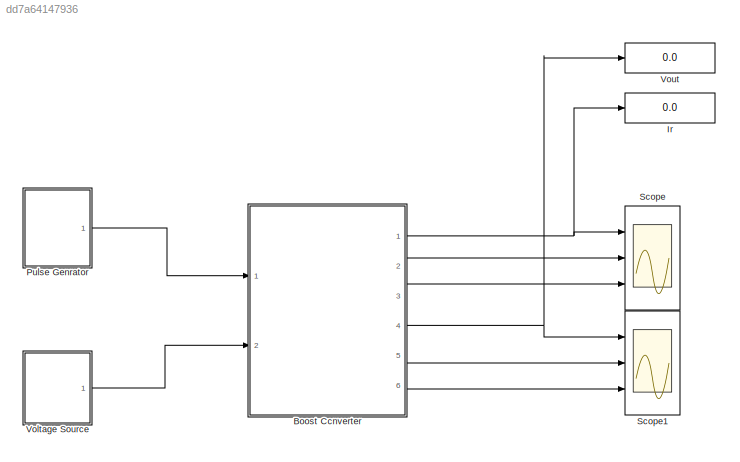
MODEL slx_dd7a64147936
KIND model
CONFIG AbsTol = auto
CONFIG FixedStep = auto
CONFIG MaxStep = auto
CONFIG MinStep = auto
CONFIG RelTol = 1e-3
CONFIG SampleTimeConstraint = Unconstrained
CONFIG Solver = ode45
CONFIG SolverMode = Auto
CONFIG SolverName = ode45
CONFIG StartTime = 0.0
CONFIG StopTime = 0.1
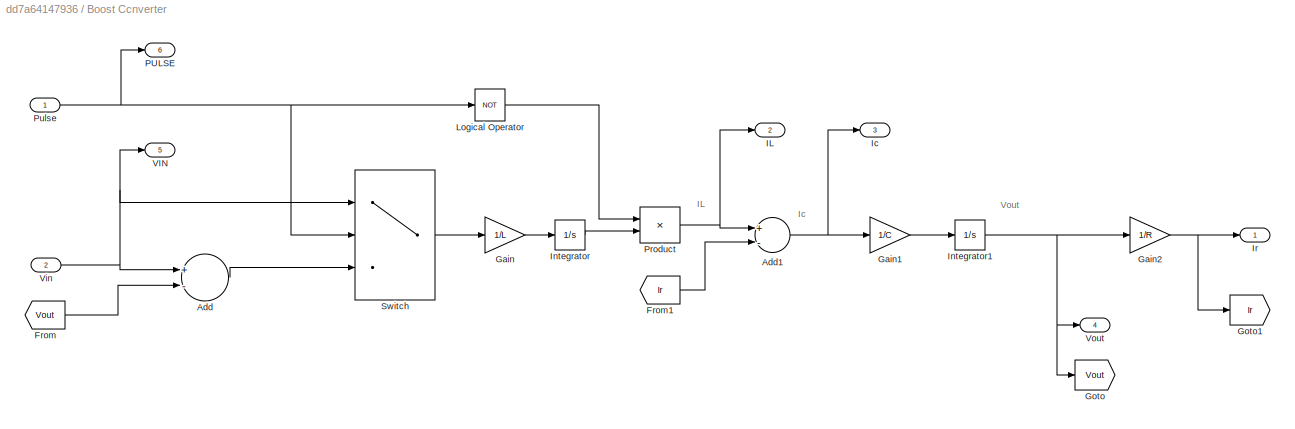
BLOCK [SubSystem] Boost Ccnverter
  Ports = [2, 6]
  RequestExecContextInheritance = off
BLOCK [Sum] Boost Ccnverter/Add
  InputSameDT = off
  Inputs = +-
  OutDataTypeStr = Inherit: Inherit via internal rule
  Ports = [2, 1]
  SaturateOnIntegerOverflow = off
BLOCK [Sum] Boost Ccnverter/Add1
  InputSameDT = off
  Inputs = +-
  OutDataTypeStr = Inherit: Inherit via internal rule
  Ports = [2, 1]
  SaturateOnIntegerOverflow = off
BLOCK [From] Boost Ccnverter/From
  GotoTag = Vout
BLOCK [From] Boost Ccnverter/From1
  GotoTag = Ir
BLOCK [Gain] Boost Ccnverter/Gain
  Gain = 1/L
  OutDataTypeStr = Inherit: Inherit via internal rule
  ParamDataTypeStr = Inherit: Inherit via internal rule
  SaturateOnIntegerOverflow = off
BLOCK [Gain] Boost Ccnverter/Gain1
  Gain = 1/C
  OutDataTypeStr = Inherit: Inherit via internal rule
  ParamDataTypeStr = Inherit: Inherit via internal rule
  SaturateOnIntegerOverflow = off
BLOCK [Gain] Boost Ccnverter/Gain2
  Gain = 1/R
  OutDataTypeStr = Inherit: Inherit via internal rule
  ParamDataTypeStr = Inherit: Inherit via internal rule
  SaturateOnIntegerOverflow = off
BLOCK [Goto] Boost Ccnverter/Goto
  GotoTag = Vout
BLOCK [Goto] Boost Ccnverter/Goto1
  GotoTag = Ir
BLOCK [Outport] Boost Ccnverter/IL
  IconDisplay = Port number
  Port = 2
BLOCK [Outport] Boost Ccnverter/Ic
  IconDisplay = Port number
  Port = 3
BLOCK [Integrator] Boost Ccnverter/Integrator
  Ports = [1, 1]
BLOCK [Integrator] Boost Ccnverter/Integrator1
  Ports = [1, 1]
BLOCK [Outport] Boost Ccnverter/Ir
  IconDisplay = Port number
BLOCK [Logic] Boost Ccnverter/Logical Operator
  AllPortsSameDT = off
  Operator = NOT
  OutDataTypeStr = boolean
  Ports = [1, 1]
BLOCK [Outport] Boost Ccnverter/PULSE
  IconDisplay = Port number
  Port = 6
BLOCK [Product] Boost Ccnverter/Product
  InputSameDT = off
  OutDataTypeStr = Inherit: Inherit via internal rule
  Ports = [2, 1]
  RndMeth = Floor
  SaturateOnIntegerOverflow = off
BLOCK [Inport] Boost Ccnverter/Pulse
  IconDisplay = Port number
BLOCK [Switch] Boost Ccnverter/Switch
  Criteria = u2 > Threshold
  InputSameDT = off
  SaturateOnIntegerOverflow = off
BLOCK [Outport] Boost Ccnverter/VIN
  IconDisplay = Port number
  Port = 5
BLOCK [Inport] Boost Ccnverter/Vin
  IconDisplay = Port number
  Port = 2
BLOCK [Outport] Boost Ccnverter/Vout
  IconDisplay = Port number
  Port = 4
BLOCK [Display] Ir
  Decimation = 1
  Ports = [1]
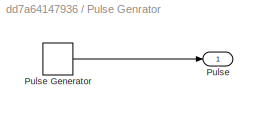
BLOCK [SubSystem] Pulse Genrator
  Ports = [0, 1]
  RequestExecContextInheritance = off
BLOCK [Outport] Pulse Genrator/Pulse
  IconDisplay = Port number
BLOCK [DiscretePulseGenerator] Pulse Genrator/Pulse Generator
  Period = 1/fs
  Ports = [0, 1]
  PulseType = Time based
  PulseWidth = D*100
BLOCK [Scope] Scope
  Floating = off
  LimitDataPoints = off
  NumInputPorts = 3
  Ports = [3]
  YMax = 5~5~5
  YMin = -5~-5~-5
  ZoomMode = xonly
BLOCK [Scope] Scope1
  Floating = off
  LimitDataPoints = off
  NumInputPorts = 3
  Ports = [3]
  SaveName = ScopeData1
  YMax = 5~5~5
  YMin = -5~-5~-5
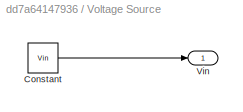
BLOCK [SubSystem] Voltage Source
  Ports = [0, 1]
  RequestExecContextInheritance = off
BLOCK [Constant] Voltage Source/Constant
  Value = Vin
BLOCK [Outport] Voltage Source/Vin
  IconDisplay = Port number
BLOCK [Display] Vout
  Decimation = 1
  Ports = [1]
ANNOTATION Boost Ccnverter: IL
ANNOTATION Boost Ccnverter: Ic
ANNOTATION Boost Ccnverter: Vout
NET Boost Ccnverter/Add1:1 -> Boost Ccnverter/Gain1:1, Boost Ccnverter/Ic:1
LINE Boost Ccnverter/Add:1 -> Boost Ccnverter/Switch:3
LINE Boost Ccnverter/From1:1 -> Boost Ccnverter/Add1:2
LINE Boost Ccnverter/From:1 -> Boost Ccnverter/Add:2
LINE Boost Ccnverter/Gain1:1 -> Boost Ccnverter/Integrator1:1
NET Boost Ccnverter/Gain2:1 -> Boost Ccnverter/Goto1:1, Boost Ccnverter/Ir:1
LINE Boost Ccnverter/Gain:1 -> Boost Ccnverter/Integrator:1
NET Boost Ccnverter/Integrator1:1 -> Boost Ccnverter/Gain2:1, Boost Ccnverter/Goto:1, Boost Ccnverter/Vout:1
LINE Boost Ccnverter/Integrator:1 -> Boost Ccnverter/Product:2
LINE Boost Ccnverter/Logical Operator:1 -> Boost Ccnverter/Product:1
NET Boost Ccnverter/Product:1 -> Boost Ccnverter/Add1:1, Boost Ccnverter/IL:1
NET Boost Ccnverter/Pulse:1 -> Boost Ccnverter/Logical Operator:1, Boost Ccnverter/PULSE:1, Boost Ccnverter/Switch:2
LINE Boost Ccnverter/Switch:1 -> Boost Ccnverter/Gain:1
NET Boost Ccnverter/Vin:1 -> Boost Ccnverter/Add:1, Boost Ccnverter/Switch:1, Boost Ccnverter/VIN:1
NET Boost Ccnverter:1 -> Ir:1, Scope:1
LINE Boost Ccnverter:2 -> Scope:2
LINE Boost Ccnverter:3 -> Scope:3
NET Boost Ccnverter:4 -> Scope1:1, Vout:1
LINE Boost Ccnverter:5 -> Scope1:2
LINE Boost Ccnverter:6 -> Scope1:3
LINE Pulse Genrator/Pulse Generator:1 -> Pulse Genrator/Pulse:1
LINE Pulse Genrator:1 -> Boost Ccnverter:1
LINE Voltage Source/Constant:1 -> Voltage Source/Vin:1
LINE Voltage Source:1 -> Boost Ccnverter:2
note: NET lines group one-source signal fan-out (src -> all destinations, sorted); 1:1 wires keep LINE
